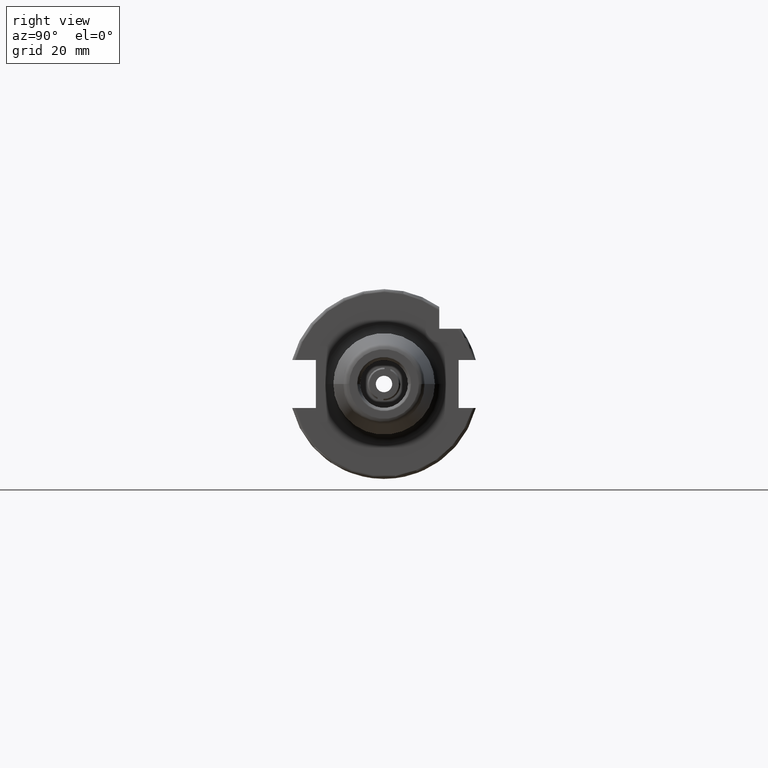
[diagram: clean part render]
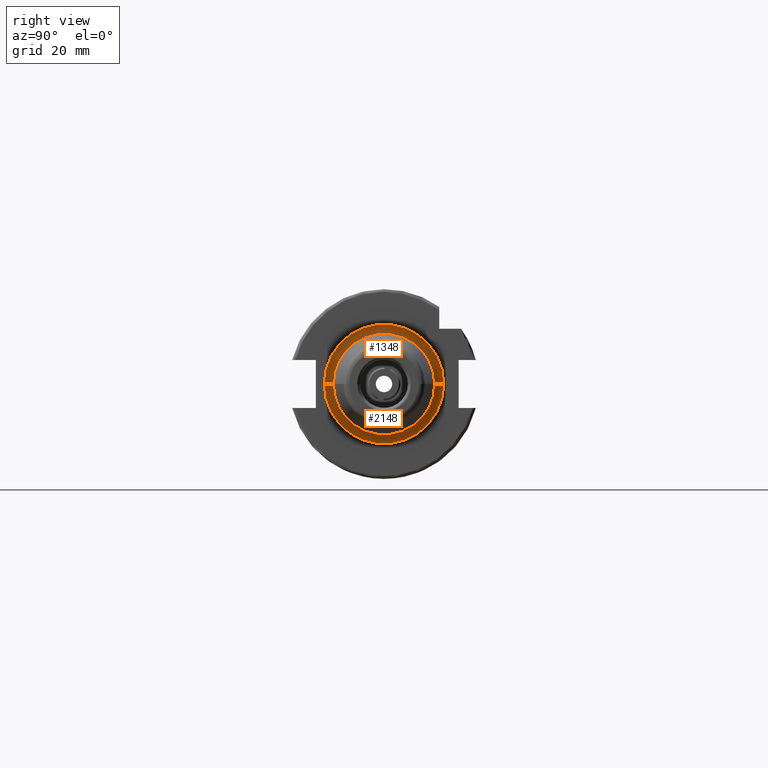
[diagram: same view with one multi-face feature highlighted, each face labeled with its STEP entity id]
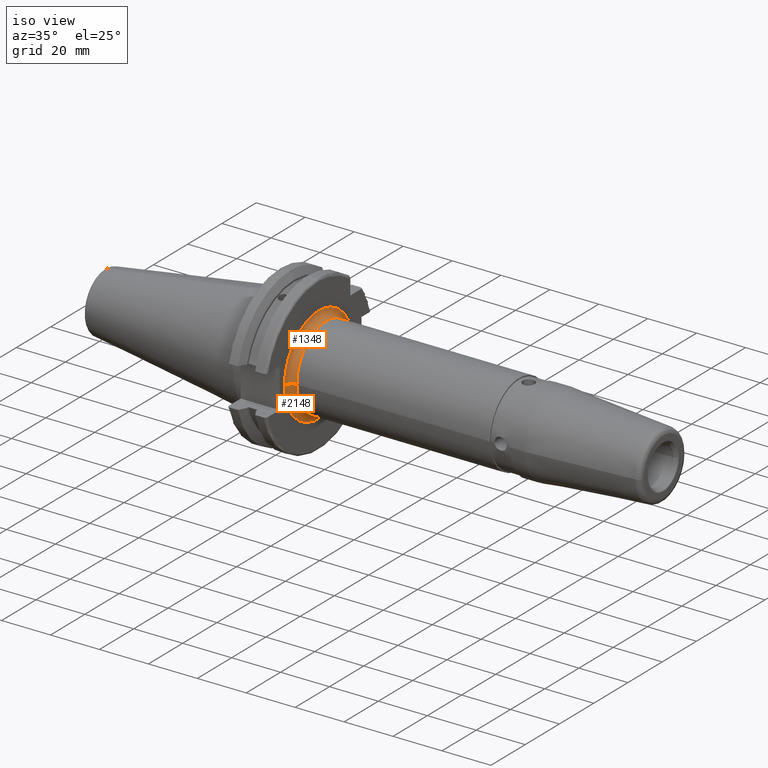
[diagram: same view with one multi-face feature highlighted, each face labeled with its STEP entity id]
A machine part, right view. The highlighted faces form ONE feature: a constant-radius fillet chain: 2 tangent blend faces with common blend radius 3 mm. The faces share edges in the B-rep.
A second angle (iso view) of the same feature is appended — it is thin or edge-on in the first view.
Their STEP definitions:
[1] entity #1348 (Torus):
#213 = VERTEX_POINT ( 'NONE', #2704 ) ;
#531 = DIRECTION ( 'NONE',  ( -1.000000000000000000, 0.0000000000000000000, 0.0000000000000000000 ) ) ;
#717 = ORIENTED_EDGE ( 'NONE', *, *, #5643, .F. ) ;
#979 = DIRECTION ( 'NONE',  ( 0.0000000000000000000, 1.000000000000000000, 1.224646799147353207E-16 ) ) ;
#1038 = AXIS2_PLACEMENT_3D ( 'NONE', #4816, #1562, #5360 ) ;
#1062 = AXIS2_PLACEMENT_3D ( 'NONE', #6760, #6731, #6797 ) ;
#1318 = VERTEX_POINT ( 'NONE', #5829 ) ;
#1348 = ADVANCED_FACE ( 'NONE', ( #2833 ), #4250, .F. ) ;
#1562 = DIRECTION ( 'NONE',  ( -1.000000000000000000, 0.0000000000000000000, 0.0000000000000000000 ) ) ;
#1895 = CIRCLE ( 'NONE', #1038, 17.00000000000000355 ) ;
#2216 = CARTESIAN_POINT ( 'NONE',  ( 19.09999999999999787, 2.449293598294706513E-15, -20.00000000000000355 ) ) ;
#2228 = EDGE_LOOP ( 'NONE', ( #717, #5457, #2472, #4630 ) ) ;
#2422 = AXIS2_PLACEMENT_3D ( 'NONE', #4246, #979, #4777 ) ;
#2472 = ORIENTED_EDGE ( 'NONE', *, *, #4703, .T. ) ;
#2483 = DIRECTION ( 'NONE',  ( 0.0000000000000000000, -1.000000000000000000, 0.0000000000000000000 ) ) ;
#2704 = CARTESIAN_POINT ( 'NONE',  ( 19.09999999999999787, 0.0000000000000000000, 20.00000000000000355 ) ) ;
#2833 = FACE_OUTER_BOUND ( 'NONE', #2228, .T. ) ;
#3212 = EDGE_CURVE ( 'NONE', #213, #6564, #5071, .T. ) ;
#3523 = VERTEX_POINT ( 'NONE', #2216 ) ;
#3802 = CARTESIAN_POINT ( 'NONE',  ( 19.10000000000000142, 0.0000000000000000000, 0.0000000000000000000 ) ) ;
#4192 = EDGE_CURVE ( 'NONE', #3523, #1318, #5891, .T. ) ;
#4246 = CARTESIAN_POINT ( 'NONE',  ( 22.09999999999999787, 2.449293598294706907E-15, -20.00000000000000355 ) ) ;
#4250 = TOROIDAL_SURFACE ( 'NONE', #1062, 20.00000000000000355, 2.999999999999999112 ) ;
#4339 = DIRECTION ( 'NONE',  ( 0.0000000000000000000, 0.0000000000000000000, 1.000000000000000000 ) ) ;
#4630 = ORIENTED_EDGE ( 'NONE', *, *, #3212, .F. ) ;
#4645 = AXIS2_PLACEMENT_3D ( 'NONE', #3802, #531, #4339 ) ;
#4665 = CARTESIAN_POINT ( 'NONE',  ( 22.09999999999999787, 0.0000000000000000000, 17.00000000000000355 ) ) ;
#4703 = EDGE_CURVE ( 'NONE', #1318, #6564, #1895, .T. ) ;
#4777 = DIRECTION ( 'NONE',  ( 0.0000000000000000000, -1.224646799147353454E-16, 1.000000000000000000 ) ) ;
#4816 = CARTESIAN_POINT ( 'NONE',  ( 22.09999999999999787, 0.0000000000000000000, 0.0000000000000000000 ) ) ;
#5071 = CIRCLE ( 'NONE', #6934, 2.999999999999999112 ) ;
#5360 = DIRECTION ( 'NONE',  ( 0.0000000000000000000, 0.0000000000000000000, 1.000000000000000000 ) ) ;
#5457 = ORIENTED_EDGE ( 'NONE', *, *, #4192, .T. ) ;
#5643 = EDGE_CURVE ( 'NONE', #3523, #213, #6226, .T. ) ;
#5701 = CARTESIAN_POINT ( 'NONE',  ( 22.09999999999999787, 0.0000000000000000000, 20.00000000000000355 ) ) ;
#5829 = CARTESIAN_POINT ( 'NONE',  ( 22.09999999999999787, 2.265596578422603791E-15, -17.00000000000000355 ) ) ;
#5891 = CIRCLE ( 'NONE', #2422, 2.999999999999999112 ) ;
#6226 = CIRCLE ( 'NONE', #4645, 20.00000000000000355 ) ;
#6252 = DIRECTION ( 'NONE',  ( 0.0000000000000000000, 0.0000000000000000000, -1.000000000000000000 ) ) ;
#6564 = VERTEX_POINT ( 'NONE', #4665 ) ;
#6731 = DIRECTION ( 'NONE',  ( -1.000000000000000000, 0.0000000000000000000, 0.0000000000000000000 ) ) ;
#6760 = CARTESIAN_POINT ( 'NONE',  ( 22.09999999999999787, 0.0000000000000000000, 0.0000000000000000000 ) ) ;
#6797 = DIRECTION ( 'NONE',  ( 0.0000000000000000000, 0.0000000000000000000, 1.000000000000000000 ) ) ;
#6934 = AXIS2_PLACEMENT_3D ( 'NONE', #5701, #2483, #6252 ) ;
[2] entity #2148 (Torus):
#213 = VERTEX_POINT ( 'NONE', #2704 ) ;
#256 = ORIENTED_EDGE ( 'NONE', *, *, #3212, .T. ) ;
#464 = DIRECTION ( 'NONE',  ( 0.0000000000000000000, 0.0000000000000000000, 1.000000000000000000 ) ) ;
#701 = ORIENTED_EDGE ( 'NONE', *, *, #5521, .F. ) ;
#979 = DIRECTION ( 'NONE',  ( 0.0000000000000000000, 1.000000000000000000, 1.224646799147353207E-16 ) ) ;
#1074 = DIRECTION ( 'NONE',  ( -1.000000000000000000, 0.0000000000000000000, 0.0000000000000000000 ) ) ;
#1318 = VERTEX_POINT ( 'NONE', #5829 ) ;
#1832 = ORIENTED_EDGE ( 'NONE', *, *, #2306, .T. ) ;
#2060 = ORIENTED_EDGE ( 'NONE', *, *, #4192, .F. ) ;
#2148 = ADVANCED_FACE ( 'NONE', ( #2912 ), #4507, .F. ) ;
#2179 = CARTESIAN_POINT ( 'NONE',  ( 22.09999999999999787, 0.0000000000000000000, 0.0000000000000000000 ) ) ;
#2216 = CARTESIAN_POINT ( 'NONE',  ( 19.09999999999999787, 2.449293598294706513E-15, -20.00000000000000355 ) ) ;
#2306 = EDGE_CURVE ( 'NONE', #6564, #1318, #5088, .T. ) ;
#2413 = EDGE_LOOP ( 'NONE', ( #2060, #701, #256, #1832 ) ) ;
#2422 = AXIS2_PLACEMENT_3D ( 'NONE', #4246, #979, #4777 ) ;
#2483 = DIRECTION ( 'NONE',  ( 0.0000000000000000000, -1.000000000000000000, 0.0000000000000000000 ) ) ;
#2704 = CARTESIAN_POINT ( 'NONE',  ( 19.09999999999999787, 0.0000000000000000000, 20.00000000000000355 ) ) ;
#2912 = FACE_OUTER_BOUND ( 'NONE', #2413, .T. ) ;
#3021 = AXIS2_PLACEMENT_3D ( 'NONE', #2179, #3303, #4375 ) ;
#3212 = EDGE_CURVE ( 'NONE', #213, #6564, #5071, .T. ) ;
#3215 = AXIS2_PLACEMENT_3D ( 'NONE', #6943, #3731, #464 ) ;
#3303 = DIRECTION ( 'NONE',  ( -1.000000000000000000, 0.0000000000000000000, 0.0000000000000000000 ) ) ;
#3523 = VERTEX_POINT ( 'NONE', #2216 ) ;
#3706 = CIRCLE ( 'NONE', #3215, 20.00000000000000355 ) ;
#3731 = DIRECTION ( 'NONE',  ( -1.000000000000000000, 0.0000000000000000000, 0.0000000000000000000 ) ) ;
#4192 = EDGE_CURVE ( 'NONE', #3523, #1318, #5891, .T. ) ;
#4246 = CARTESIAN_POINT ( 'NONE',  ( 22.09999999999999787, 2.449293598294706907E-15, -20.00000000000000355 ) ) ;
#4343 = CARTESIAN_POINT ( 'NONE',  ( 22.09999999999999787, 0.0000000000000000000, 0.0000000000000000000 ) ) ;
#4375 = DIRECTION ( 'NONE',  ( 0.0000000000000000000, 0.0000000000000000000, 1.000000000000000000 ) ) ;
#4507 = TOROIDAL_SURFACE ( 'NONE', #3021, 20.00000000000000355, 2.999999999999999112 ) ;
#4665 = CARTESIAN_POINT ( 'NONE',  ( 22.09999999999999787, 0.0000000000000000000, 17.00000000000000355 ) ) ;
#4777 = DIRECTION ( 'NONE',  ( 0.0000000000000000000, -1.224646799147353454E-16, 1.000000000000000000 ) ) ;
#4815 = AXIS2_PLACEMENT_3D ( 'NONE', #4343, #1074, #4882 ) ;
#4882 = DIRECTION ( 'NONE',  ( 0.0000000000000000000, 0.0000000000000000000, 1.000000000000000000 ) ) ;
#5071 = CIRCLE ( 'NONE', #6934, 2.999999999999999112 ) ;
#5088 = CIRCLE ( 'NONE', #4815, 17.00000000000000355 ) ;
#5521 = EDGE_CURVE ( 'NONE', #213, #3523, #3706, .T. ) ;
#5701 = CARTESIAN_POINT ( 'NONE',  ( 22.09999999999999787, 0.0000000000000000000, 20.00000000000000355 ) ) ;
#5829 = CARTESIAN_POINT ( 'NONE',  ( 22.09999999999999787, 2.265596578422603791E-15, -17.00000000000000355 ) ) ;
#5891 = CIRCLE ( 'NONE', #2422, 2.999999999999999112 ) ;
#6252 = DIRECTION ( 'NONE',  ( 0.0000000000000000000, 0.0000000000000000000, -1.000000000000000000 ) ) ;
#6564 = VERTEX_POINT ( 'NONE', #4665 ) ;
#6934 = AXIS2_PLACEMENT_3D ( 'NONE', #5701, #2483, #6252 ) ;
#6943 = CARTESIAN_POINT ( 'NONE',  ( 19.10000000000000142, 0.0000000000000000000, 0.0000000000000000000 ) ) ;